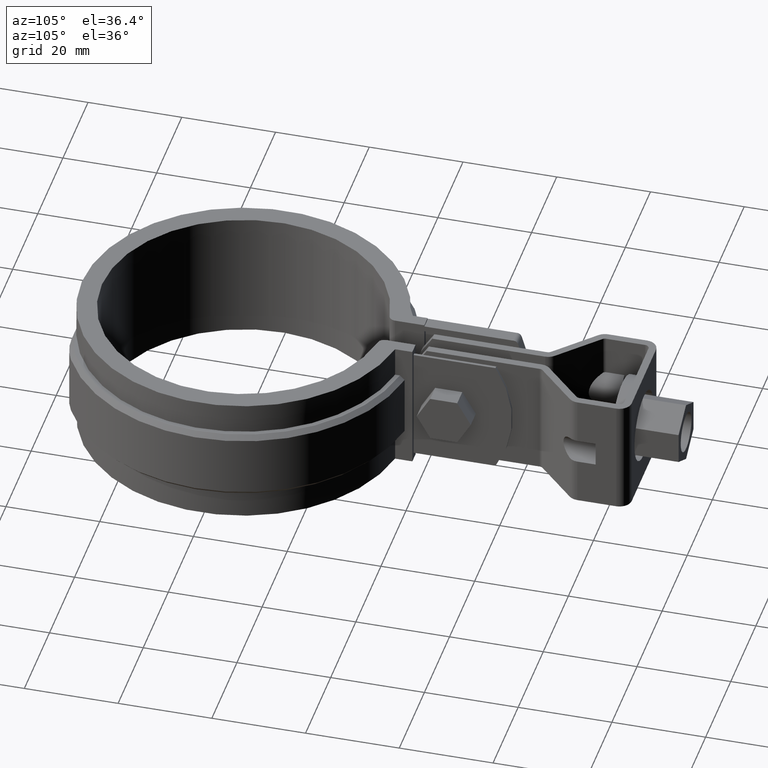
[diagram: clean part render]
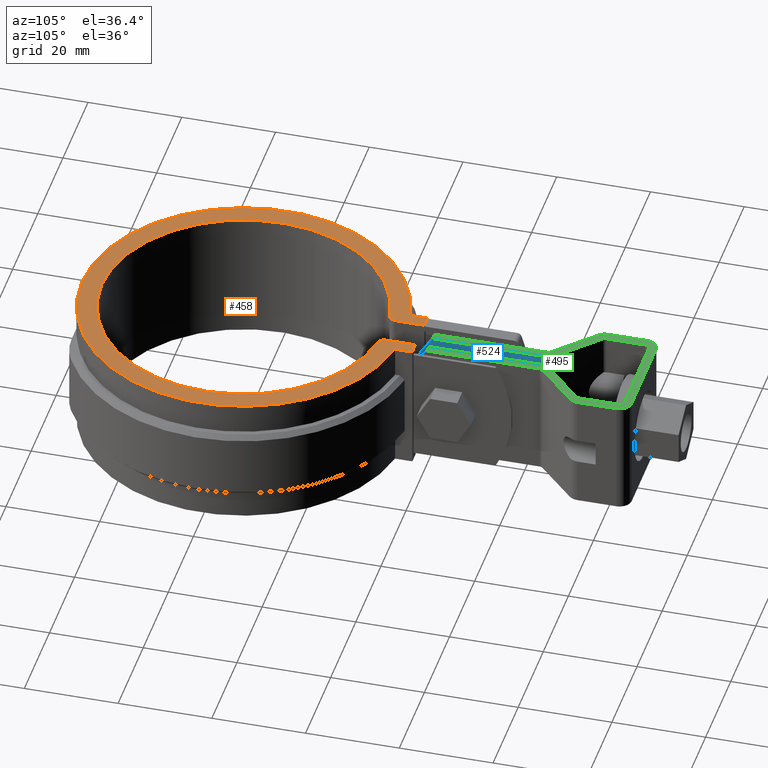
[diagram: same view with three faces highlighted in distinct colors, each labeled with its STEP entity id]
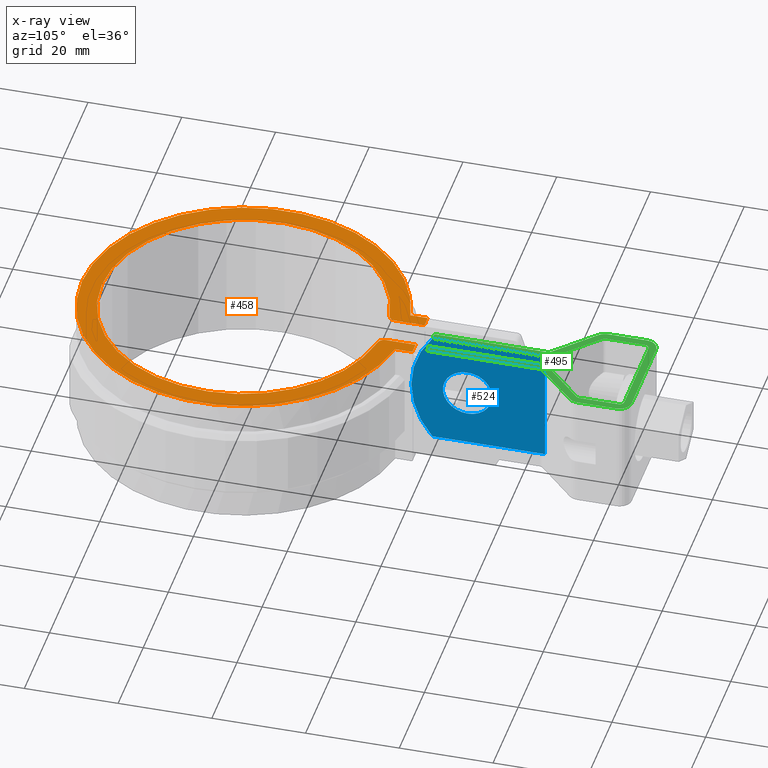
[diagram: x-ray of the same camera — body ghosted, the three highlighted faces saturated]
A machine part, auxiliary view with three faces highlighted in distinct colors.
The next image is the same camera in x-ray (body ghosted, the three faces saturated) — at least one of them is partly hidden behind the body in this view.
Their STEP definitions:

[orange] entity #458 — the highlighted planar face has unit normal (0, 0, 1).
#458 = ADVANCED_FACE( '', ( #907 ), #908, .T. );
#907 = FACE_OUTER_BOUND( '', #2011, .T. );
#908 = PLANE( '', #2012 );
#2011 = EDGE_LOOP( '', ( #4576, #4577, #4578, #4579, #4580, #4581, #4582, #4583, #4584, #4585 ) );
#2012 = AXIS2_PLACEMENT_3D( '', #4586, #4587, #4588 );
#4576 = ORIENTED_EDGE( '', *, *, #7132, .T. );
#4577 = ORIENTED_EDGE( '', *, *, #7133, .T. );
#4578 = ORIENTED_EDGE( '', *, *, #7134, .T. );
#4579 = ORIENTED_EDGE( '', *, *, #7135, .T. );
#4580 = ORIENTED_EDGE( '', *, *, #7136, .F. );
#4581 = ORIENTED_EDGE( '', *, *, #7137, .T. );
#4582 = ORIENTED_EDGE( '', *, *, #7138, .T. );
#4583 = ORIENTED_EDGE( '', *, *, #7139, .T. );
#4584 = ORIENTED_EDGE( '', *, *, #7031, .T. );
#4585 = ORIENTED_EDGE( '', *, *, #7128, .T. );
#4586 = CARTESIAN_POINT( '', ( 0.000000000000000, 0.000000000000000, 1.50000000000000 ) );
#4587 = DIRECTION( '', ( 0.000000000000000, 0.000000000000000, 1.00000000000000 ) );
#4588 = DIRECTION( '', ( 1.00000000000000, 0.000000000000000, 0.000000000000000 ) );
#7031 = EDGE_CURVE( '', #8130, #8131, #8132, .T. );
#7128 = EDGE_CURVE( '', #8131, #8286, #8288, .T. );
#7132 = EDGE_CURVE( '', #8286, #8292, #8293, .T. );
#7133 = EDGE_CURVE( '', #8292, #8294, #8295, .T. );
#7134 = EDGE_CURVE( '', #8294, #8296, #8297, .T. );
#7135 = EDGE_CURVE( '', #8296, #8298, #8299, .T. );
#7136 = EDGE_CURVE( '', #8300, #8298, #8301, .T. );
#7137 = EDGE_CURVE( '', #8300, #8302, #8303, .T. );
#7138 = EDGE_CURVE( '', #8302, #8304, #8305, .T. );
#7139 = EDGE_CURVE( '', #8304, #8130, #8306, .T. );
#8130 = VERTEX_POINT( '', #11327 );
#8131 = VERTEX_POINT( '', #11328 );
#8132 = LINE( '', #11329, #11330 );
#8286 = VERTEX_POINT( '', #11871 );
#8288 = CIRCLE( '', #11874, 34.4950000000000 );
#8292 = VERTEX_POINT( '', #11879 );
#8293 = LINE( '', #11880, #11881 );
#8294 = VERTEX_POINT( '', #11882 );
#8295 = LINE( '', #11883, #11884 );
#8296 = VERTEX_POINT( '', #11885 );
#8297 = LINE( '', #11886, #11887 );
#8298 = VERTEX_POINT( '', #11888 );
#8299 = CIRCLE( '', #11889, 1.50000000000000 );
#8300 = VERTEX_POINT( '', #11890 );
#8301 = CIRCLE( '', #11891, 30.2500000000000 );
#8302 = VERTEX_POINT( '', #11892 );
#8303 = CIRCLE( '', #11893, 1.50000000000000 );
#8304 = VERTEX_POINT( '', #11894 );
#8305 = LINE( '', #11895, #11896 );
#8306 = LINE( '', #11897, #11898 );
#11327 = CARTESIAN_POINT( '', ( -6.09999999999997, 37.6315111874232, 1.50000000000000 ) );
#11328 = CARTESIAN_POINT( '', ( -6.09999999999997, 33.9513626383390, 1.50000000000000 ) );
#11329 = CARTESIAN_POINT( '', ( -6.09999999999997, 3.70363462121046E-016, 1.50000000000000 ) );
#11330 = VECTOR( '', #13658, 1000.00000000000 );
#11871 = CARTESIAN_POINT( '', ( 6.10000000000003, 33.9513626383390, 1.50000000000000 ) );
#11874 = AXIS2_PLACEMENT_3D( '', #13782, #13783, #13784 );
#11879 = CARTESIAN_POINT( '', ( 6.10000000000003, 37.6315111874232, 1.50000000000000 ) );
#11880 = CARTESIAN_POINT( '', ( 6.10000000000003, -3.70363462121050E-016, 1.50000000000000 ) );
#11881 = VECTOR( '', #13792, 1000.00000000000 );
#11882 = CARTESIAN_POINT( '', ( 3.50000000000001, 37.6315111874232, 1.50000000000000 ) );
#11883 = CARTESIAN_POINT( '', ( 0.000000000000000, 37.6315111874232, 1.50000000000000 ) );
#11884 = VECTOR( '', #13793, 1000.00000000000 );
#11885 = CARTESIAN_POINT( '', ( 3.50000000000001, 31.3538275175456, 1.50000000000000 ) );
#11886 = CARTESIAN_POINT( '', ( 3.50000000000001, -2.12503625807159E-016, 1.50000000000000 ) );
#11887 = VECTOR( '', #13794, 1000.00000000000 );
#11888 = CARTESIAN_POINT( '', ( 4.76377952755906, 29.8725443277403, 1.50000000000000 ) );
#11889 = AXIS2_PLACEMENT_3D( '', #13795, #13796, #13797 );
#11890 = CARTESIAN_POINT( '', ( -4.76377952755906, 29.8725443277403, 1.50000000000000 ) );
#11891 = AXIS2_PLACEMENT_3D( '', #13798, #13799, #13800 );
#11892 = CARTESIAN_POINT( '', ( -3.50000000000000, 31.3538275175456, 1.50000000000000 ) );
#11893 = AXIS2_PLACEMENT_3D( '', #13801, #13802, #13803 );
#11894 = CARTESIAN_POINT( '', ( -3.50000000000000, 37.6315111874232, 1.50000000000000 ) );
#11895 = CARTESIAN_POINT( '', ( -3.50000000000000, 2.12503625807159E-016, 1.50000000000000 ) );
#11896 = VECTOR( '', #13804, 1000.00000000000 );
#11897 = CARTESIAN_POINT( '', ( 0.000000000000000, 37.6315111874232, 1.50000000000000 ) );
#11898 = VECTOR( '', #13805, 1000.00000000000 );
#13658 = DIRECTION( '', ( -6.07153216591882E-017, -1.00000000000000, 0.000000000000000 ) );
#13782 = CARTESIAN_POINT( '', ( 0.000000000000000, 0.000000000000000, 1.50000000000000 ) );
#13783 = DIRECTION( '', ( 0.000000000000000, 0.000000000000000, 1.00000000000000 ) );
#13784 = DIRECTION( '', ( 1.00000000000000, 0.000000000000000, 0.000000000000000 ) );
#13792 = DIRECTION( '', ( 6.07153216591882E-017, 1.00000000000000, 0.000000000000000 ) );
#13793 = DIRECTION( '', ( -1.00000000000000, 0.000000000000000, 0.000000000000000 ) );
#13794 = DIRECTION( '', ( -6.07153216591882E-017, -1.00000000000000, 0.000000000000000 ) );
#13795 = CARTESIAN_POINT( '', ( 5.00000000000001, 31.3538275175456, 1.50000000000000 ) );
#13796 = DIRECTION( '', ( 0.000000000000000, 0.000000000000000, 1.00000000000000 ) );
#13797 = DIRECTION( '', ( 1.00000000000000, 0.000000000000000, 0.000000000000000 ) );
#13798 = CARTESIAN_POINT( '', ( 0.000000000000000, 0.000000000000000, 1.50000000000000 ) );
#13799 = DIRECTION( '', ( 0.000000000000000, 0.000000000000000, 1.00000000000000 ) );
#13800 = DIRECTION( '', ( 1.00000000000000, 0.000000000000000, 0.000000000000000 ) );
#13801 = CARTESIAN_POINT( '', ( -5.00000000000000, 31.3538275175456, 1.50000000000000 ) );
#13802 = DIRECTION( '', ( 0.000000000000000, 0.000000000000000, 1.00000000000000 ) );
#13803 = DIRECTION( '', ( 1.00000000000000, 0.000000000000000, 0.000000000000000 ) );
#13804 = DIRECTION( '', ( 6.07153216591882E-017, 1.00000000000000, 0.000000000000000 ) );
#13805 = DIRECTION( '', ( -1.00000000000000, 0.000000000000000, 0.000000000000000 ) );

[blue] entity #524 — the highlighted planar face has unit normal (1, -0, -0).
#524 = ADVANCED_FACE( '', ( #1045, #1046 ), #1047, .T. );
#1045 = FACE_OUTER_BOUND( '', #2300, .T. );
#1046 = FACE_BOUND( '', #2301, .T. );
#1047 = PLANE( '', #2302 );
#2300 = EDGE_LOOP( '', ( #5349, #5350, #5351, #5352 ) );
#2301 = EDGE_LOOP( '', ( #5353 ) );
#2302 = AXIS2_PLACEMENT_3D( '', #5354, #5355, #5356 );
#5349 = ORIENTED_EDGE( '', *, *, #7215, .T. );
#5350 = ORIENTED_EDGE( '', *, *, #7258, .T. );
#5351 = ORIENTED_EDGE( '', *, *, #7178, .F. );
#5352 = ORIENTED_EDGE( '', *, *, #7299, .T. );
#5353 = ORIENTED_EDGE( '', *, *, #7300, .T. );
#5354 = CARTESIAN_POINT( '', ( -1.40000000004981, 35.4015111806816, -25.0000000057727 ) );
#5355 = DIRECTION( '', ( 1.00000000000000, -3.52007841521144E-026, -3.93847312317871E-013 ) );
#5356 = DIRECTION( '', ( 0.000000000000000, 1.00000000000000, -8.93767281156515E-014 ) );
#7178 = EDGE_CURVE( '', #8357, #8358, #8359, .F. );
#7215 = EDGE_CURVE( '', #8430, #8428, #8431, .T. );
#7258 = EDGE_CURVE( '', #8428, #8358, #8504, .T. );
#7299 = EDGE_CURVE( '', #8357, #8430, #8565, .T. );
#7300 = EDGE_CURVE( '', #8566, #8566, #8567, .F. );
#8357 = VERTEX_POINT( '', #11985 );
#8358 = VERTEX_POINT( '', #11986 );
#8359 = LINE( '', #11987, #11988 );
#8428 = VERTEX_POINT( '', #12078 );
#8430 = VERTEX_POINT( '', #12080 );
#8431 = LINE( '', #12081, #12082 );
#8504 = LINE( '', #12195, #12196 );
#8565 = CIRCLE( '', #12306, 19.6111110000000 );
#8566 = VERTEX_POINT( '', #12307 );
#8567 = CIRCLE( '', #12308, 5.25000000000000 );
#11985 = CARTESIAN_POINT( '', ( -1.40000000003997, 39.9015112153615, -6.05928691304851E-009 ) );
#11986 = CARTESIAN_POINT( '', ( -1.40000000004124, 63.9556575565695, -7.59101827037151E-009 ) );
#11987 = CARTESIAN_POINT( '', ( -1.40000000003996, 82.8015111822726, -8.79109418650662E-009 ) );
#11988 = VECTOR( '', #13863, 1000.00000000000 );
#12078 = CARTESIAN_POINT( '', ( -1.40000000005109, 63.9556575549775, -25.0000000075911 ) );
#12080 = CARTESIAN_POINT( '', ( -1.40000000004981, 39.9015112137697, -25.0000000060593 ) );
#12081 = CARTESIAN_POINT( '', ( -1.40000000004981, 35.4015111806816, -25.0000000057728 ) );
#12082 = VECTOR( '', #13930, 1000.00000000000 );
#12195 = CARTESIAN_POINT( '', ( -1.40000000005236, 63.9556575549776, -25.0000000075910 ) );
#12196 = VECTOR( '', #14003, 1000.00000000000 );
#12306 = AXIS2_PLACEMENT_3D( '', #14054, #14055, #14056 );
#12307 = CARTESIAN_POINT( '', ( -1.40000000004695, 47.4015111814774, -17.7500000065368 ) );
#12308 = AXIS2_PLACEMENT_3D( '', #14057, #14058, #14059 );
#13863 = DIRECTION( '', ( 2.50443970840630E-023, -1.00000000000000, 6.36784791563427E-011 ) );
#13930 = DIRECTION( '', ( -2.50443970840630E-023, 1.00000000000000, -6.36784791563427E-011 ) );
#14003 = DIRECTION( '', ( 3.93847312312188E-013, 6.36784194194502E-011, 1.00000000000000 ) );
#14054 = CARTESIAN_POINT( '', ( -1.40000000004489, 55.0126221814773, -12.5000000070215 ) );
#14055 = DIRECTION( '', ( 1.00000000000000, -3.52007841521144E-026, -3.93847312317871E-013 ) );
#14056 = DIRECTION( '', ( -3.93847312317871E-013, 0.000000000000000, -1.00000000000000 ) );
#14057 = CARTESIAN_POINT( '', ( -1.40000000004489, 47.4015111814774, -12.5000000065368 ) );
#14058 = DIRECTION( '', ( 1.00000000000000, -3.52007841521144E-026, -3.93847312317871E-013 ) );
#14059 = DIRECTION( '', ( -3.93847312317871E-013, 0.000000000000000, -1.00000000000000 ) );

[green] entity #495 — the highlighted planar face has unit normal (-0, -0, -1).
#495 = ADVANCED_FACE( '', ( #983 ), #984, .F. );
#983 = FACE_OUTER_BOUND( '', #2238, .T. );
#984 = PLANE( '', #2239 );
#2238 = EDGE_LOOP( '', ( #5067, #5068, #5069, #5070, #5071, #5072, #5073, #5074, #5075, #5076, #5077, #5078, #5079, #5080, #5081, #5082, #5083, #5084, #5085, #5086, #5087, #5088, #5089, #5090, #5091, #5092, #5093, #5094 ) );
#2239 = AXIS2_PLACEMENT_3D( '', #5095, #5096, #5097 );
#5067 = ORIENTED_EDGE( '', *, *, #7178, .T. );
#5068 = ORIENTED_EDGE( '', *, *, #7179, .T. );
#5069 = ORIENTED_EDGE( '', *, *, #7180, .F. );
#5070 = ORIENTED_EDGE( '', *, *, #7181, .F. );
#5071 = ORIENTED_EDGE( '', *, *, #7182, .F. );
#5072 = ORIENTED_EDGE( '', *, *, #7183, .F. );
#5073 = ORIENTED_EDGE( '', *, *, #7184, .F. );
#5074 = ORIENTED_EDGE( '', *, *, #7185, .T. );
#5075 = ORIENTED_EDGE( '', *, *, #7186, .T. );
#5076 = ORIENTED_EDGE( '', *, *, #7187, .T. );
#5077 = ORIENTED_EDGE( '', *, *, #7188, .T. );
#5078 = ORIENTED_EDGE( '', *, *, #7189, .F. );
#5079 = ORIENTED_EDGE( '', *, *, #7190, .F. );
#5080 = ORIENTED_EDGE( '', *, *, #7191, .T. );
#5081 = ORIENTED_EDGE( '', *, *, #7192, .F. );
#5082 = ORIENTED_EDGE( '', *, *, #7193, .F. );
#5083 = ORIENTED_EDGE( '', *, *, #7194, .T. );
#5084 = ORIENTED_EDGE( '', *, *, #7195, .T. );
#5085 = ORIENTED_EDGE( '', *, *, #7196, .T. );
#5086 = ORIENTED_EDGE( '', *, *, #7197, .T. );
#5087 = ORIENTED_EDGE( '', *, *, #7198, .F. );
#5088 = ORIENTED_EDGE( '', *, *, #7199, .F. );
#5089 = ORIENTED_EDGE( '', *, *, #7200, .F. );
#5090 = ORIENTED_EDGE( '', *, *, #7201, .F. );
#5091 = ORIENTED_EDGE( '', *, *, #7202, .F. );
#5092 = ORIENTED_EDGE( '', *, *, #7203, .T. );
#5093 = ORIENTED_EDGE( '', *, *, #7204, .T. );
#5094 = ORIENTED_EDGE( '', *, *, #7205, .F. );
#5095 = CARTESIAN_POINT( '', ( -9.65000000004422, 82.8015111822726, -8.78784545133016E-009 ) );
#5096 = DIRECTION( '', ( -3.93786081994497E-013, -6.36784791563427E-011, -1.00000000000000 ) );
#5097 = DIRECTION( '', ( 0.000000000000000, -1.00000000000000, 6.36784791563427E-011 ) );
#7178 = EDGE_CURVE( '', #8357, #8358, #8359, .F. );
#7179 = EDGE_CURVE( '', #8358, #8360, #8361, .F. );
#7180 = EDGE_CURVE( '', #8362, #8360, #8363, .F. );
#7181 = EDGE_CURVE( '', #8364, #8362, #8365, .F. );
#7182 = EDGE_CURVE( '', #8366, #8364, #8367, .F. );
#7183 = EDGE_CURVE( '', #8368, #8366, #8369, .F. );
#7184 = EDGE_CURVE( '', #8370, #8368, #8371, .F. );
#7185 = EDGE_CURVE( '', #8370, #8372, #8373, .T. );
#7186 = EDGE_CURVE( '', #8372, #8374, #8375, .F. );
#7187 = EDGE_CURVE( '', #8374, #8376, #8377, .T. );
#7188 = EDGE_CURVE( '', #8376, #8378, #8379, .F. );
#7189 = EDGE_CURVE( '', #8380, #8378, #8381, .T. );
#7190 = EDGE_CURVE( '', #8382, #8380, #8383, .F. );
#7191 = EDGE_CURVE( '', #8382, #8384, #8385, .T. );
#7192 = EDGE_CURVE( '', #8386, #8384, #8387, .F. );
#7193 = EDGE_CURVE( '', #8388, #8386, #8389, .F. );
#7194 = EDGE_CURVE( '', #8388, #8390, #8391, .F. );
#7195 = EDGE_CURVE( '', #8390, #8392, #8393, .F. );
#7196 = EDGE_CURVE( '', #8392, #8394, #8395, .F. );
#7197 = EDGE_CURVE( '', #8394, #8396, #8397, .F. );
#7198 = EDGE_CURVE( '', #8398, #8396, #8399, .F. );
#7199 = EDGE_CURVE( '', #8400, #8398, #8401, .T. );
#7200 = EDGE_CURVE( '', #8402, #8400, #8403, .F. );
#7201 = EDGE_CURVE( '', #8404, #8402, #8405, .T. );
#7202 = EDGE_CURVE( '', #8406, #8404, #8407, .F. );
#7203 = EDGE_CURVE( '', #8406, #8408, #8409, .T. );
#7204 = EDGE_CURVE( '', #8408, #8410, #8411, .F. );
#7205 = EDGE_CURVE( '', #8357, #8410, #8412, .T. );
#8357 = VERTEX_POINT( '', #11985 );
#8358 = VERTEX_POINT( '', #11986 );
#8359 = LINE( '', #11987, #11988 );
#8360 = VERTEX_POINT( '', #11989 );
#8361 = CIRCLE( '', #11990, 2.60000000000000 );
#8362 = VERTEX_POINT( '', #11991 );
#8363 = LINE( '', #11992, #11993 );
#8364 = VERTEX_POINT( '', #11994 );
#8365 = CIRCLE( '', #11995, 1.00000000000000 );
#8366 = VERTEX_POINT( '', #11996 );
#8367 = LINE( '', #11997, #11998 );
#8368 = VERTEX_POINT( '', #11999 );
#8369 = CIRCLE( '', #12000, 1.00000000000000 );
#8370 = VERTEX_POINT( '', #12001 );
#8371 = LINE( '', #12002, #12003 );
#8372 = VERTEX_POINT( '', #12004 );
#8373 = CIRCLE( '', #12005, 1.00000000000000 );
#8374 = VERTEX_POINT( '', #12006 );
#8375 = LINE( '', #12007, #12008 );
#8376 = VERTEX_POINT( '', #12009 );
#8377 = CIRCLE( '', #12010, 1.00000000000000 );
#8378 = VERTEX_POINT( '', #12011 );
#8379 = LINE( '', #12012, #12013 );
#8380 = VERTEX_POINT( '', #12014 );
#8381 = CIRCLE( '', #12015, 2.60000000000001 );
#8382 = VERTEX_POINT( '', #12016 );
#8383 = LINE( '', #12017, #12018 );
#8384 = VERTEX_POINT( '', #12019 );
#8385 = LINE( '', #12020, #12021 );
#8386 = VERTEX_POINT( '', #12022 );
#8387 = LINE( '', #12023, #12024 );
#8388 = VERTEX_POINT( '', #12025 );
#8389 = CIRCLE( '', #12026, 1.00000000000000 );
#8390 = VERTEX_POINT( '', #12027 );
#8391 = LINE( '', #12028, #12029 );
#8392 = VERTEX_POINT( '', #12030 );
#8393 = CIRCLE( '', #12031, 2.59999999999999 );
#8394 = VERTEX_POINT( '', #12032 );
#8395 = LINE( '', #12033, #12034 );
#8396 = VERTEX_POINT( '', #12035 );
#8397 = CIRCLE( '', #12036, 2.60000000000000 );
#8398 = VERTEX_POINT( '', #12037 );
#8399 = LINE( '', #12038, #12039 );
#8400 = VERTEX_POINT( '', #12040 );
#8401 = CIRCLE( '', #12041, 2.59999999999999 );
#8402 = VERTEX_POINT( '', #12042 );
#8403 = LINE( '', #12043, #12044 );
#8404 = VERTEX_POINT( '', #12045 );
#8405 = CIRCLE( '', #12046, 2.59999999999999 );
#8406 = VERTEX_POINT( '', #12047 );
#8407 = LINE( '', #12048, #12049 );
#8408 = VERTEX_POINT( '', #12050 );
#8409 = CIRCLE( '', #12051, 1.00000000000000 );
#8410 = VERTEX_POINT( '', #12052 );
#8411 = LINE( '', #12053, #12054 );
#8412 = LINE( '', #12055, #12056 );
#11985 = CARTESIAN_POINT( '', ( -1.40000000003997, 39.9015112153615, -6.05928691304851E-009 ) );
#11986 = CARTESIAN_POINT( '', ( -1.40000000004124, 63.9556575565695, -7.59101827037151E-009 ) );
#11987 = CARTESIAN_POINT( '', ( -1.40000000003996, 82.8015111822726, -8.79109418650662E-009 ) );
#11988 = VECTOR( '', #13863, 1000.00000000000 );
#11989 = CARTESIAN_POINT( '', ( -2.18435802766339, 65.8166906643176, -7.70921733753913E-009 ) );
#11990 = AXIS2_PLACEMENT_3D( '', #13864, #13865, #13866 );
#11991 = CARTESIAN_POINT( '', ( -10.3483238355739, 73.7815349866441, -8.21319209495897E-009 ) );
#11992 = CARTESIAN_POINT( '', ( -10.3483238355739, 73.7815349866441, -8.21319209495897E-009 ) );
#11993 = VECTOR( '', #13867, 1000.00000000000 );
#11994 = CARTESIAN_POINT( '', ( -10.6500000000439, 74.4973169511627, -8.25865320599221E-009 ) );
#11995 = AXIS2_PLACEMENT_3D( '', #13868, #13869, #13870 );
#11996 = CARTESIAN_POINT( '', ( -10.6500000000442, 82.8015111822725, -8.78745166524816E-009 ) );
#11997 = CARTESIAN_POINT( '', ( -10.6500000000442, 82.8015111822725, -8.78745166524816E-009 ) );
#11998 = VECTOR( '', #13871, 1000.00000000000 );
#11999 = CARTESIAN_POINT( '', ( -9.65000000004431, 83.8015111822726, -8.85152393048650E-009 ) );
#12000 = AXIS2_PLACEMENT_3D( '', #13872, #13873, #13874 );
#12001 = CARTESIAN_POINT( '', ( 9.64999999995569, 83.8015111822745, -8.85912400186912E-009 ) );
#12002 = CARTESIAN_POINT( '', ( 9.64999999995571, 83.8015111822743, -8.85912400186911E-009 ) );
#12003 = VECTOR( '', #13875, 1000.00000000000 );
#12004 = CARTESIAN_POINT( '', ( 10.6499999999558, 82.8015111822748, -8.79583930879479E-009 ) );
#12005 = AXIS2_PLACEMENT_3D( '', #13876, #13877, #13878 );
#12006 = CARTESIAN_POINT( '', ( 10.6499999999565, 74.4973169511648, -8.26704084953883E-009 ) );
#12007 = CARTESIAN_POINT( '', ( 10.6499999999558, 82.8015111822744, -8.79583930879477E-009 ) );
#12008 = VECTOR( '', #13879, 1000.00000000000 );
#12009 = CARTESIAN_POINT( '', ( 10.3483238354871, 73.7815349866463, -8.22134214675592E-009 ) );
#12010 = AXIS2_PLACEMENT_3D( '', #13880, #13881, #13882 );
#12011 = CARTESIAN_POINT( '', ( 2.18435802757799, 65.8166906643183, -7.71093764629427E-009 ) );
#12012 = CARTESIAN_POINT( '', ( 4.61091970877068, 68.1840678047888, -7.86264463959581E-009 ) );
#12013 = VECTOR( '', #13883, 1000.00000000000 );
#12014 = CARTESIAN_POINT( '', ( 1.39999999995746, 63.9556575565701, -7.59212119753987E-009 ) );
#12015 = AXIS2_PLACEMENT_3D( '', #13884, #13885, #13886 );
#12016 = CARTESIAN_POINT( '', ( 1.39999999995962, 39.9015112153621, -6.06038873474674E-009 ) );
#12017 = CARTESIAN_POINT( '', ( 1.39999999996002, 35.4015111822740, -5.77383627020645E-009 ) );
#12018 = VECTOR( '', #13887, 1000.00000000000 );
#12019 = CARTESIAN_POINT( '', ( 2.99999999995743, 39.9015112153622, -6.06101901534873E-009 ) );
#12020 = CARTESIAN_POINT( '', ( 38.4737108565555, 39.9015112153654, -6.07498801719511E-009 ) );
#12021 = VECTOR( '', #13888, 1000.00000000000 );
#12022 = CARTESIAN_POINT( '', ( 2.99999999995745, 63.9556575867944, -7.59275068446898E-009 ) );
#12023 = CARTESIAN_POINT( '', ( 2.99999999995743, 64.3771213556845, -7.61958898753967E-009 ) );
#12024 = VECTOR( '', #13889, 1000.00000000000 );
#12025 = CARTESIAN_POINT( '', ( 3.30167616442690, 64.6714395513129, -7.63845025268716E-009 ) );
#12026 = AXIS2_PLACEMENT_3D( '', #13890, #13891, #13892 );
#12027 = CARTESIAN_POINT( '', ( 11.4656419723360, 72.6362838736408, -8.14885428195907E-009 ) );
#12028 = CARTESIAN_POINT( '', ( 5.72823783051220, 67.0388166770444, -7.79015677385446E-009 ) );
#12029 = VECTOR( '', #13893, 1000.00000000000 );
#12030 = CARTESIAN_POINT( '', ( 12.2499999999565, 74.4973169813889, -8.26767090919465E-009 ) );
#12031 = AXIS2_PLACEMENT_3D( '', #13894, #13895, #13896 );
#12032 = CARTESIAN_POINT( '', ( 12.2499999999562, 82.8015111822748, -8.79646936652598E-009 ) );
#12033 = CARTESIAN_POINT( '', ( 12.2499999999565, 82.8015111822726, -8.79646936652584E-009 ) );
#12034 = VECTOR( '', #13897, 1000.00000000000 );
#12035 = CARTESIAN_POINT( '', ( 9.64999999995566, 85.4015111822737, -8.96100956851921E-009 ) );
#12036 = AXIS2_PLACEMENT_3D( '', #13898, #13899, #13900 );
#12037 = CARTESIAN_POINT( '', ( -9.65000000004433, 85.4015111822726, -8.95340949713665E-009 ) );
#12038 = CARTESIAN_POINT( '', ( -9.65000000004445, 85.4015111822726, -8.95340949713665E-009 ) );
#12039 = VECTOR( '', #13901, 1000.00000000000 );
#12040 = CARTESIAN_POINT( '', ( -12.2500000000442, 82.8015111822724, -8.78682160751696E-009 ) );
#12041 = AXIS2_PLACEMENT_3D( '', #13902, #13903, #13904 );
#12042 = CARTESIAN_POINT( '', ( -12.2500000000435, 74.4973169813865, -8.25802315018563E-009 ) );
#12043 = CARTESIAN_POINT( '', ( -12.2500000000435, 74.4973169813865, -8.25802315018563E-009 ) );
#12044 = VECTOR( '', #13905, 1000.00000000000 );
#12045 = CARTESIAN_POINT( '', ( -11.4656419724226, 72.6362838736385, -8.13982426149921E-009 ) );
#12046 = AXIS2_PLACEMENT_3D( '', #13906, #13907, #13908 );
#12047 = CARTESIAN_POINT( '', ( -3.30167616451206, 64.6714395513120, -7.63584994444546E-009 ) );
#12048 = CARTESIAN_POINT( '', ( -3.90167616451214, 65.2568053779016, -7.67288887838359E-009 ) );
#12049 = VECTOR( '', #13909, 1000.00000000000 );
#12050 = CARTESIAN_POINT( '', ( -3.00000000004251, 63.9556575867935, -7.59038969884748E-009 ) );
#12051 = AXIS2_PLACEMENT_3D( '', #13910, #13911, #13912 );
#12052 = CARTESIAN_POINT( '', ( -3.00000000004037, 39.9015112153614, -6.05865717292808E-009 ) );
#12053 = CARTESIAN_POINT( '', ( -3.00000000004420, 82.8015111822732, -8.79046412877546E-009 ) );
#12054 = VECTOR( '', #13913, 1000.00000000000 );
#12055 = CARTESIAN_POINT( '', ( -38.4737108566362, 39.9015112153582, -6.04468760224022E-009 ) );
#12056 = VECTOR( '', #13914, 1000.00000000000 );
#13863 = DIRECTION( '', ( 2.50443970840630E-023, -1.00000000000000, 6.36784791563427E-011 ) );
#13864 = CARTESIAN_POINT( '', ( -4.00000000004251, 63.9556575565694, -7.58999460503951E-009 ) );
#13865 = DIRECTION( '', ( -3.93786081994497E-013, -6.36784791563427E-011, -1.00000000000000 ) );
#13866 = DIRECTION( '', ( 0.000000000000000, 1.00000000000000, -6.36784791563427E-011 ) );
#13867 = DIRECTION( '', ( -0.715781964518568, 0.698323835530437, -4.41863348298321E-011 ) );
#13868 = CARTESIAN_POINT( '', ( -9.65000000004347, 74.4973169511627, -8.25904699207421E-009 ) );
#13869 = DIRECTION( '', ( -3.93786081994497E-013, -6.36784791563427E-011, -1.00000000000000 ) );
#13870 = DIRECTION( '', ( 0.000000000000000, 1.00000000000000, -6.36784791563427E-011 ) );
#13871 = DIRECTION( '', ( -2.50404160650455E-023, 1.00000000000000, -6.36784791563427E-011 ) );
#13872 = CARTESIAN_POINT( '', ( -9.65000000004422, 82.8015111822726, -8.78784545133016E-009 ) );
#13873 = DIRECTION( '', ( -3.93786081994497E-013, -6.36784791563427E-011, -1.00000000000000 ) );
#13874 = DIRECTION( '', ( 0.000000000000000, 1.00000000000000, -6.36784791563427E-011 ) );
#13875 = DIRECTION( '', ( 1.00000000000000, 8.95987727205804E-014, -3.93786082000202E-013 ) );
#13876 = CARTESIAN_POINT( '', ( 9.64999999995578, 82.8015111822747, -8.79544552271279E-009 ) );
#13877 = DIRECTION( '', ( -3.93786081994497E-013, -6.36784791563427E-011, -1.00000000000000 ) );
#13878 = DIRECTION( '', ( 0.000000000000000, 1.00000000000000, -6.36784791563427E-011 ) );
#13879 = DIRECTION( '', ( -8.94763121102739E-014, 1.00000000000000, -6.36784791563427E-011 ) );
#13880 = CARTESIAN_POINT( '', ( 9.64999999995652, 74.4973169511647, -8.26664706345683E-009 ) );
#13881 = DIRECTION( '', ( -3.93786081994497E-013, -6.36784791563427E-011, -1.00000000000000 ) );
#13882 = DIRECTION( '', ( 0.000000000000000, 1.00000000000000, -6.36784791563427E-011 ) );
#13883 = DIRECTION( '', ( 0.715781964518444, 0.698323835530563, -4.47500647805803E-011 ) );
#13884 = CARTESIAN_POINT( '', ( 3.99999999995746, 63.9556575565704, -7.59314486287188E-009 ) );
#13885 = DIRECTION( '', ( -3.93786081994497E-013, -6.36784791563427E-011, -1.00000000000000 ) );
#13886 = DIRECTION( '', ( 0.000000000000000, 1.00000000000000, -6.36784791563427E-011 ) );
#13887 = DIRECTION( '', ( 8.96983567151989E-014, -1.00000000000000, 6.36784791563427E-011 ) );
#13888 = DIRECTION( '', ( 1.00000000000000, 8.94763120851979E-014, -3.93786082000195E-013 ) );
#13889 = DIRECTION( '', ( -2.50364832890148E-023, 1.00000000000000, -6.36784791563427E-011 ) );
#13890 = CARTESIAN_POINT( '', ( 3.99999999995746, 63.9556575867944, -7.59314533598624E-009 ) );
#13891 = DIRECTION( '', ( -3.93786081994497E-013, -6.36784791563427E-011, -1.00000000000000 ) );
#13892 = DIRECTION( '', ( 0.000000000000000, 1.00000000000000, -6.36784791563427E-011 ) );
#13893 = DIRECTION( '', ( -0.715781964518444, -0.698323835530563, 4.47500647805803E-011 ) );
#13894 = CARTESIAN_POINT( '', ( 9.64999999995652, 74.4973169813888, -8.26664706538145E-009 ) );
#13895 = DIRECTION( '', ( -3.93786081994497E-013, -6.36784791563427E-011, -1.00000000000000 ) );
#13896 = DIRECTION( '', ( 0.000000000000000, 1.00000000000000, -6.36784791563427E-011 ) );
#13897 = DIRECTION( '', ( 2.50404642883389E-023, -1.00000000000000, 6.36784791563427E-011 ) );
#13898 = CARTESIAN_POINT( '', ( 9.64999999995578, 82.8015111822747, -8.79544552271279E-009 ) );
#13899 = DIRECTION( '', ( -3.93786081994497E-013, -6.36784791563427E-011, -1.00000000000000 ) );
#13900 = DIRECTION( '', ( 0.000000000000000, 1.00000000000000, -6.36784791563427E-011 ) );
#13901 = DIRECTION( '', ( -1.00000000000000, 3.07812123970626E-023, 3.93786081994497E-013 ) );
#13902 = CARTESIAN_POINT( '', ( -9.65000000004422, 82.8015111822726, -8.78784545133016E-009 ) );
#13903 = DIRECTION( '', ( -3.93786081994497E-013, -6.36784791563427E-011, -1.00000000000000 ) );
#13904 = DIRECTION( '', ( 0.000000000000000, 1.00000000000000, -6.36784791563427E-011 ) );
#13905 = DIRECTION( '', ( 8.95987727456561E-014, -1.00000000000000, 6.36784791563427E-011 ) );
#13906 = CARTESIAN_POINT( '', ( -9.65000000004347, 74.4973169813868, -8.25904699399883E-009 ) );
#13907 = DIRECTION( '', ( -3.93786081994497E-013, -6.36784791563427E-011, -1.00000000000000 ) );
#13908 = DIRECTION( '', ( 0.000000000000000, 1.00000000000000, -6.36784791563427E-011 ) );
#13909 = DIRECTION( '', ( 0.715781964518568, -0.698323835530437, 4.41863348298321E-011 ) );
#13910 = CARTESIAN_POINT( '', ( -4.00000000004252, 63.9556575867934, -7.58999504733022E-009 ) );
#13911 = DIRECTION( '', ( -3.93786081994497E-013, -6.36784791563427E-011, -1.00000000000000 ) );
#13912 = DIRECTION( '', ( 0.000000000000000, 1.00000000000000, -6.36784791563427E-011 ) );
#13913 = DIRECTION( '', ( -8.93767281407311E-014, 1.00000000000000, -6.36784791563427E-011 ) );
#13914 = DIRECTION( '', ( -1.00000000000000, -8.95987727205808E-014, 3.93786082000202E-013 ) );